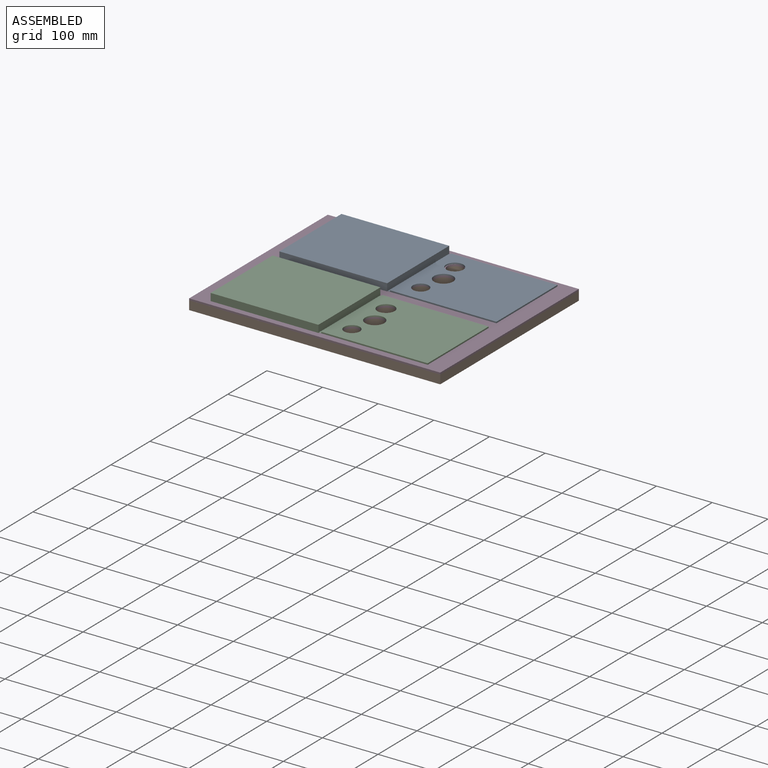
[diagram: assembled view]
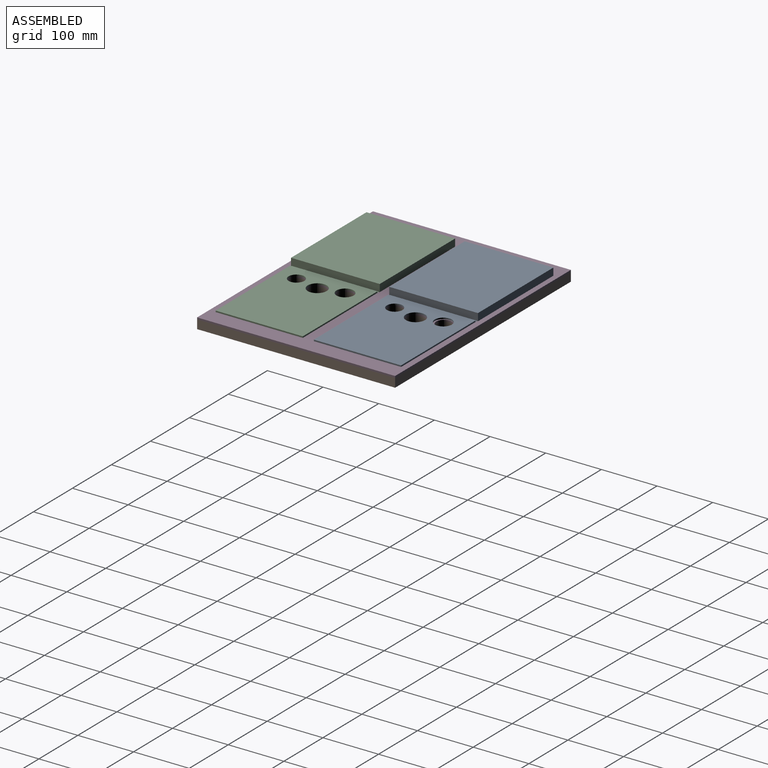
[diagram: assembled view, second angle]
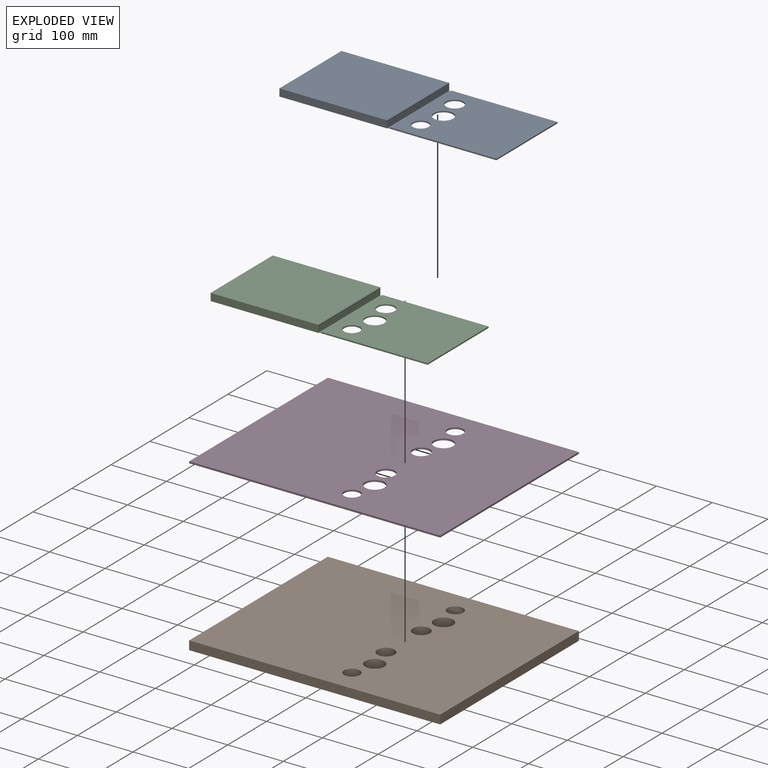
[diagram: exploded view]
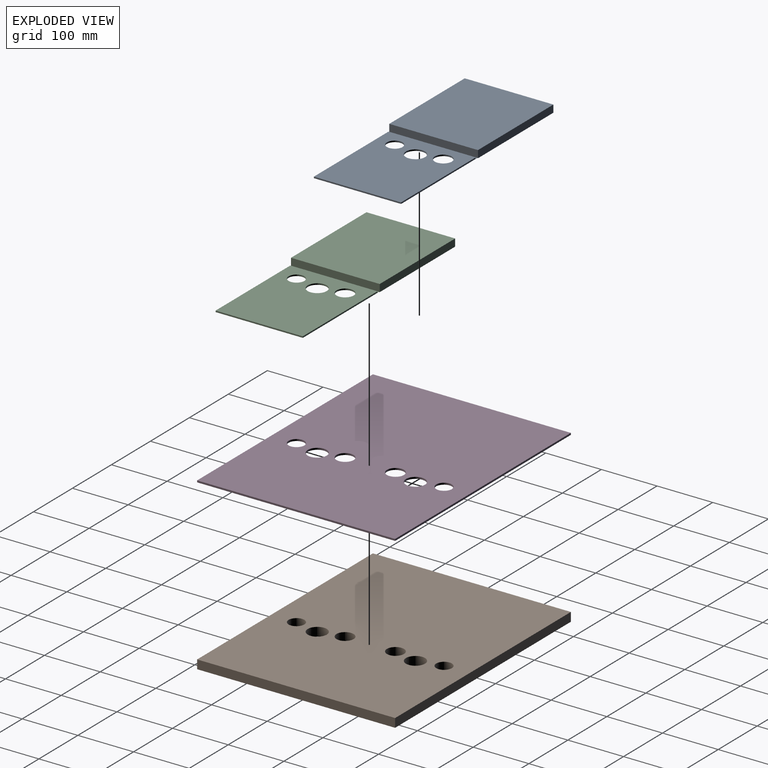
[diagram: exploded view, second angle]
ASSEMBLY  parts=4 mates=3
PART A: 15 faces, bbox 388.9x159.3x13.2 mm
  f0: plane 156.59x2.12mm, normal (-1,0,0), area 332.1mm2, adj f1,f6,f7,f9
  f1: plane 195.35x2.48mm, normal (0,-1,0), area 474.7mm2, adj f0,f2,f7,f8,f9,f10
  f2: plane 156.59x2.48mm, normal (1,0,0), area 387.8mm2, adj f1,f6,f7,f8
  f3: cylinder r=17.17mm len=34.34mm, axis (0,0,-1), area 267.2mm2, adj f7,f8
  f4: cylinder r=15.42mm len=30.84mm, axis (0,0,-1), area 239.9mm2, adj f7,f8
  f5: cylinder r=14.12mm len=28.25mm, axis (0,0,-1), area 219.7mm2, adj f7,f8
  f6: plane 195.35x2.48mm, normal (0,1,0), area 474.7mm2, adj f0,f2,f7,f8,f9,f10
  f7: plane 191.08x156.59mm, normal (0,0,1), area 27622.5mm2, adj f0,f1,f2,f3,f4,f5,f6
  f8: plane 388.89x159.3mm, normal (0,0,-1), area 59120.1mm2, adj f1,f2,f3,f4,f5,f6,f10,f11
  f9: plane 156.59x4.27mm, normal (0,0,1), area 668.2mm2, adj f0,f1,f6,f10
  f10: plane 159.3x13.21mm, normal (1,0,0), area 2048.3mm2, adj f1,f6,f8,f9,f11,f13,f14
  f11: plane 193.54x13.21mm, normal (0,1,0), area 2556.2mm2, adj f8,f10,f12,f14
  f12: plane 159.3x13.21mm, normal (-1,0,0), area 2104mm2, adj f8,f11,f13,f14
  f13: plane 193.54x13.21mm, normal (0,-1,0), area 2556.2mm2, adj f8,f10,f12,f14
  f14: plane 193.54x159.3mm, normal (0,0,1), area 30829.4mm2, adj f10,f11,f12,f13
PART B: 12 faces, bbox 450.9x355.6x15.9 mm
  f0: plane 355.6x15.88mm, normal (1,0,0), area 5645.2mm2, adj f1,f3,f4,f5
  f1: plane 450.85x15.88mm, normal (0,1,0), area 7157.2mm2, adj f0,f2,f4,f5
  f2: plane 355.6x15.88mm, normal (-1,0,0), area 5645.2mm2, adj f1,f3,f4,f5
  f3: plane 450.85x15.88mm, normal (0,-1,0), area 7157.2mm2, adj f0,f2,f4,f5
  f4: plane 450.85x355.6mm, normal (0,0,1), area 155723.1mm2, adj f0,f1,f2,f3,f6,f7,f8,f9
  f5: plane 450.85x355.6mm, normal (0,0,-1), area 155723.1mm2, adj f0,f1,f2,f3,f6,f7,f8,f9
  f6: cylinder r=14.12mm len=28.25mm, axis (0,0,1), area 1408.6mm2, adj f4,f5
  f7: cylinder r=17.17mm len=34.34mm, axis (0,0,1), area 1712.7mm2, adj f4,f5
  f8: cylinder r=15.42mm len=30.84mm, axis (0,0,1), area 1537.9mm2, adj f4,f5
  f9: cylinder r=14.12mm len=28.25mm, axis (0,0,1), area 1408.6mm2, adj f4,f5
  f10: cylinder r=17.17mm len=34.34mm, axis (0,0,1), area 1712.7mm2, adj f4,f5
  f11: cylinder r=15.42mm len=30.84mm, axis (0,0,1), area 1537.9mm2, adj f4,f5
PART C: same geometry as A
PART D: 12 faces, bbox 450.9x355.6x3.2 mm
  f0: plane 355.6x3.18mm, normal (1,0,0), area 1129mm2, adj f1,f3,f4,f5
  f1: plane 450.85x3.18mm, normal (0,1,0), area 1431.4mm2, adj f0,f2,f4,f5
  f2: plane 355.6x3.18mm, normal (-1,0,0), area 1129mm2, adj f1,f3,f4,f5
  f3: plane 450.85x3.18mm, normal (0,-1,0), area 1431.4mm2, adj f0,f2,f4,f5
  f4: plane 450.85x355.6mm, normal (0,0,1), area 155723.1mm2, adj f0,f1,f2,f3,f6,f7,f8,f9
  f5: plane 450.85x355.6mm, normal (0,0,-1), area 155723.1mm2, adj f0,f1,f2,f3,f6,f7,f8,f9
  f6: cylinder r=14.12mm len=28.25mm, axis (0,0,1), area 281.7mm2, adj f4,f5
  f7: cylinder r=17.17mm len=34.34mm, axis (0,0,1), area 342.5mm2, adj f4,f5
  f8: cylinder r=15.42mm len=30.84mm, axis (0,0,1), area 307.6mm2, adj f4,f5
  f9: cylinder r=14.12mm len=28.25mm, axis (0,0,1), area 281.7mm2, adj f4,f5
  f10: cylinder r=17.17mm len=34.34mm, axis (0,0,1), area 342.5mm2, adj f4,f5
  f11: cylinder r=15.42mm len=30.84mm, axis (0,0,1), area 307.6mm2, adj f4,f5
PLACE A t=(0.56,176.65,-8.13)mm
PLACE B t=(0.56,0.19,-8.13)mm fixed
PLACE C t=(0.56,0.19,-8.13)mm
PLACE D t=(0.56,0.19,-8.13)mm
MATE fastened A.f3 <-> D.f10  axis (0,0,-1) through (45.74,88.42,10.92)mm
MATE fastened C.f3 <-> D.f7  axis (0,0,-1) through (45.74,-88.03,10.92)mm
MATE fastened B.f4 <-> D.f5  axis (0,0,1) through (-0.6,0.19,7.75)mm
